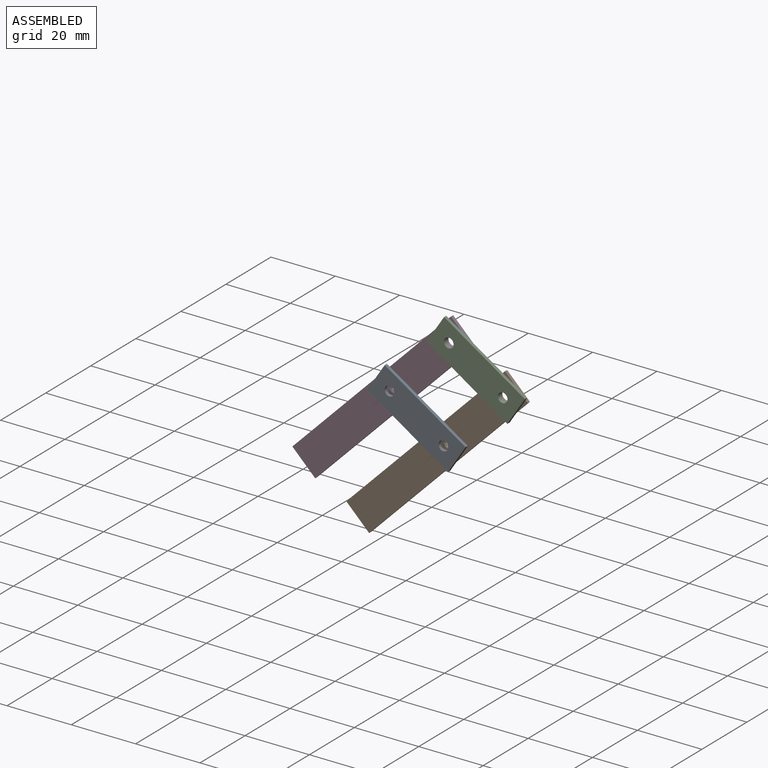
[diagram: assembled view]
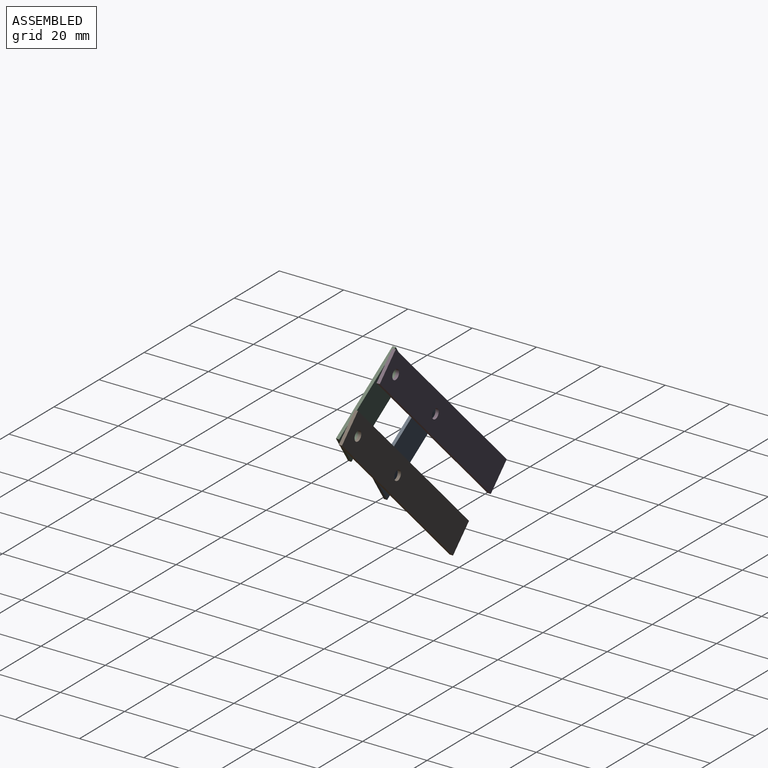
[diagram: assembled view, second angle]
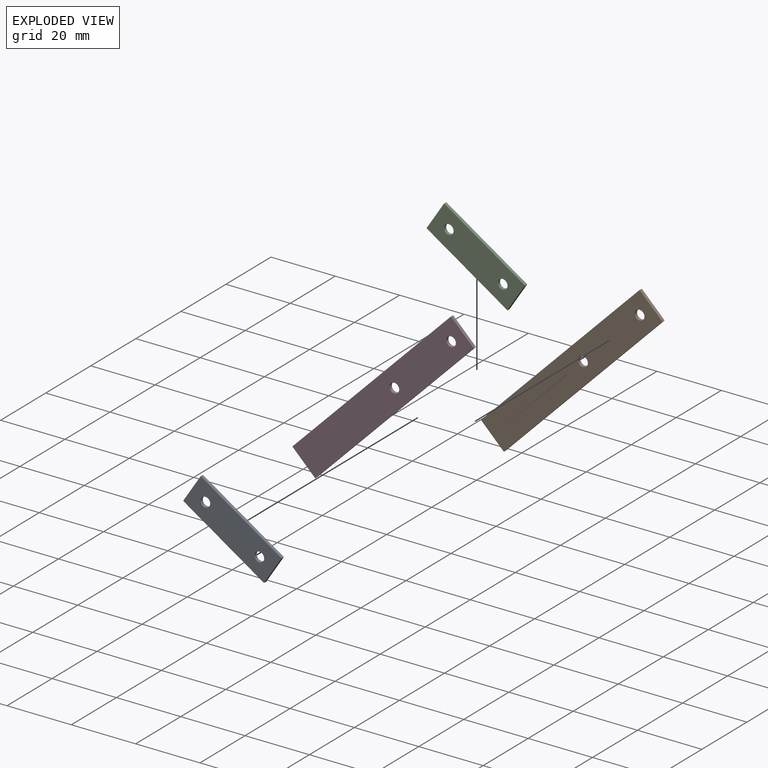
[diagram: exploded view]
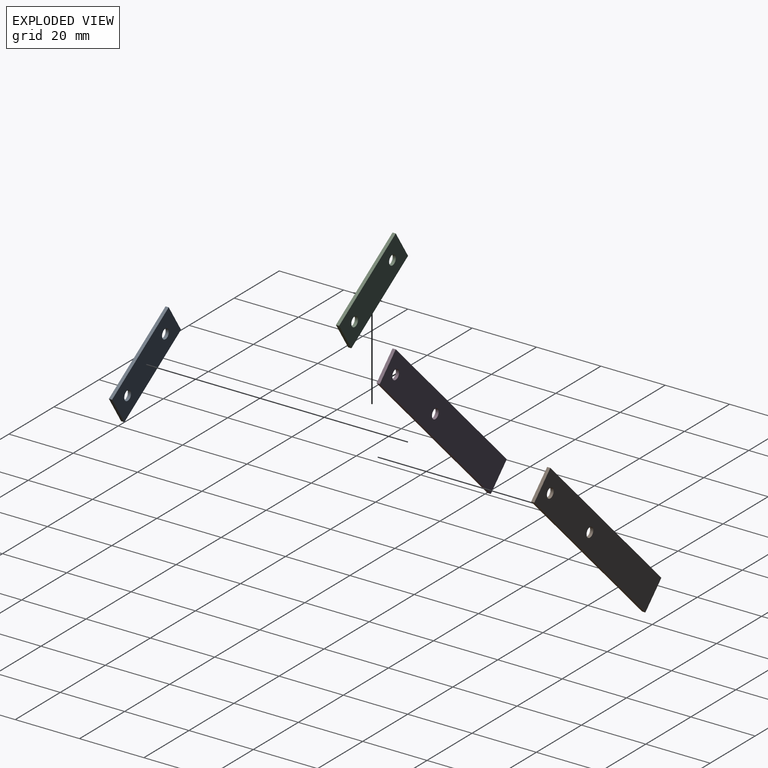
[diagram: exploded view, second angle]
ASSEMBLY  parts=4 mates=6
PART A: 8 faces, bbox 30x1x10 mm
  f0: plane 10x1mm, normal (-1,0,0), area 10mm2, adj f1,f4,f6,f7
  f1: plane 30x1mm, normal (0,0,-1), area 30mm2, adj f0,f2,f6,f7
  f2: plane 10x1mm, normal (1,0,0), area 10mm2, adj f1,f4,f6,f7
  f3: cylinder r=1.5mm len=3mm, axis (0,1,0), area 9.4mm2, adj f6,f7
  f4: plane 30x1mm, normal (0,0,1), area 30mm2, adj f0,f2,f6,f7
  f5: cylinder r=1.5mm len=3mm, axis (0,1,0), area 9.4mm2, adj f6,f7
  f6: plane 30x10mm, normal (0,-1,0), area 285.9mm2, adj f0,f1,f2,f3,f4,f5
  f7: plane 30x10mm, normal (0,1,0), area 285.9mm2, adj f0,f1,f2,f3,f4,f5
PART B: 8 faces, bbox 70x1x10 mm
  f0: plane 10x1mm, normal (-1,0,0), area 10mm2, adj f1,f4,f6,f7
  f1: plane 70x1mm, normal (0,0,-1), area 70mm2, adj f0,f2,f6,f7
  f2: plane 10x1mm, normal (1,0,0), area 10mm2, adj f1,f4,f6,f7
  f3: cylinder r=1.5mm len=3mm, axis (0,1,0), area 9.4mm2, adj f6,f7
  f4: plane 70x1mm, normal (0,0,1), area 70mm2, adj f0,f2,f6,f7
  f5: cylinder r=1.5mm len=3mm, axis (0,1,0), area 9.4mm2, adj f6,f7
  f6: plane 70x10mm, normal (0,-1,0), area 685.9mm2, adj f0,f1,f2,f3,f4,f5
  f7: plane 70x10mm, normal (0,1,0), area 685.9mm2, adj f0,f1,f2,f3,f4,f5
PART C: same geometry as A
PART D: same geometry as B
PLACE A rot(axis=(0,-1,0),147deg) t=(49.26,14.28,-30.15)mm
PLACE B rot(axis=(0,-1,0),45.2deg) t=(17.72,16.48,-63.53)mm
PLACE C rot(axis=(0,-1,0),147deg) t=(66.86,15.48,-12.39)mm
PLACE D rot(axis=(0,-1,0),45.2deg) t=(0.96,16.48,-52.63)mm
MATE cylindrical D.f3 <-> A.f5  axis (0,-1,0) through (25.57,15.48,-20.7)mm
MATE planar D.f6 <-> C.f7  axis (0,-1,0) through (21.8,15.48,-24.51)mm
MATE cylindrical C.f5 <-> D.f5  axis (0,1,0) through (43.18,15.48,-2.95)mm
MATE planar B.f3 <-> C.f7  axis (0,-1,0) through (42.34,15.48,-31.61)mm
MATE cylindrical A.f3 <-> B.f3  axis (0,-1,0) through (42.34,13.28,-31.61)mm
MATE cylindrical B.f5 <-> C.f3  axis (0,-1,0) through (59.94,15.48,-13.86)mm
